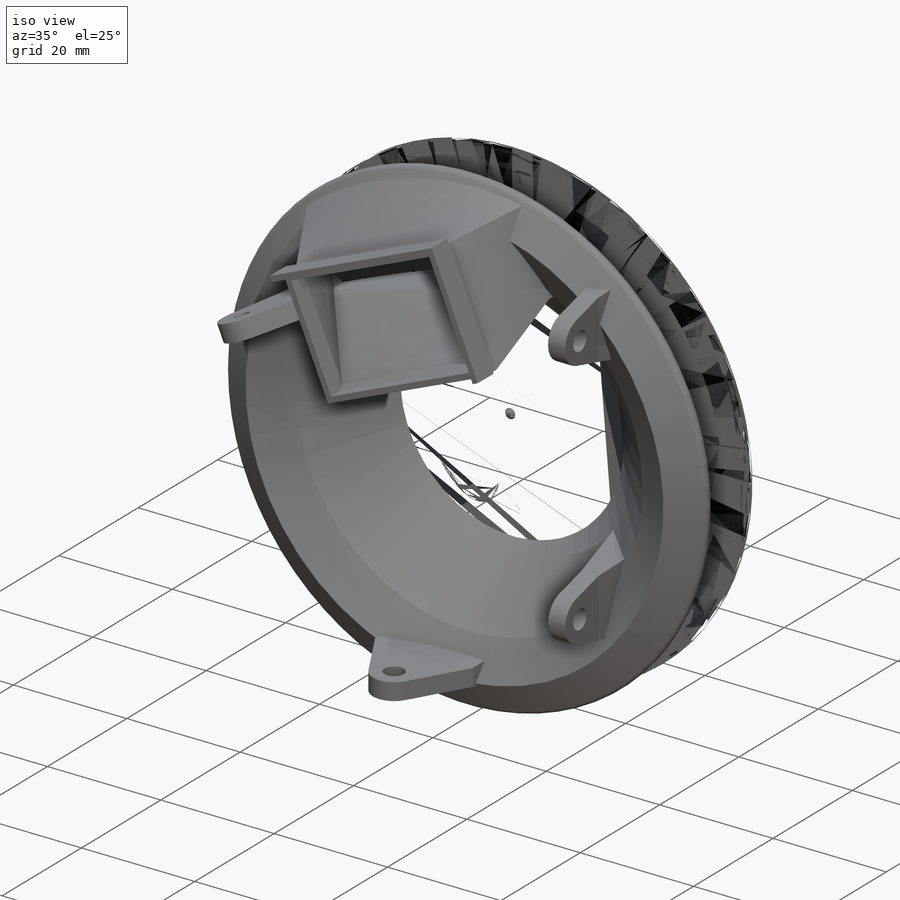
[diagram: iso view]
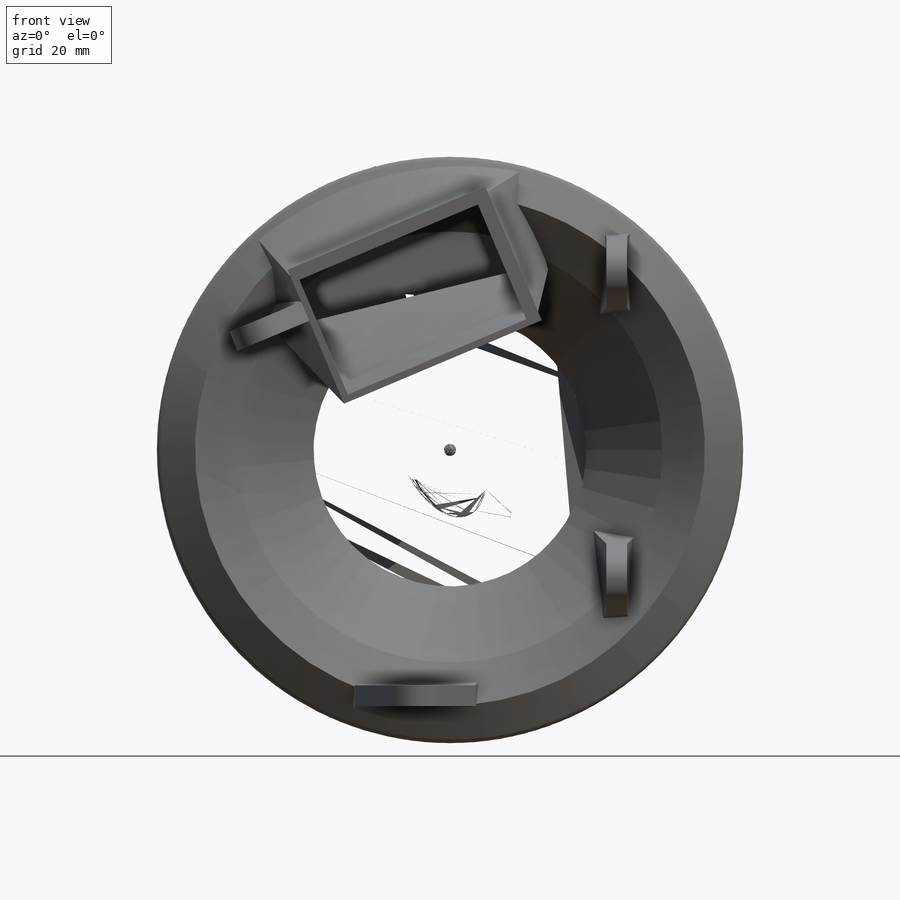
[diagram: front view]
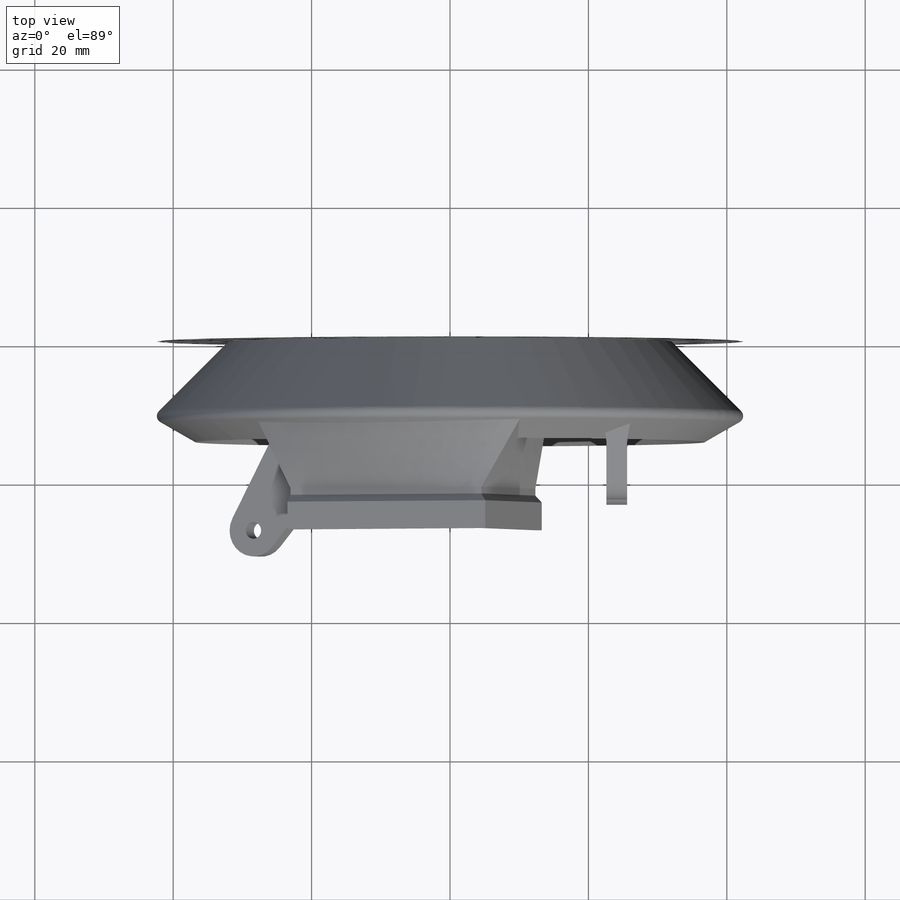
[diagram: top view]
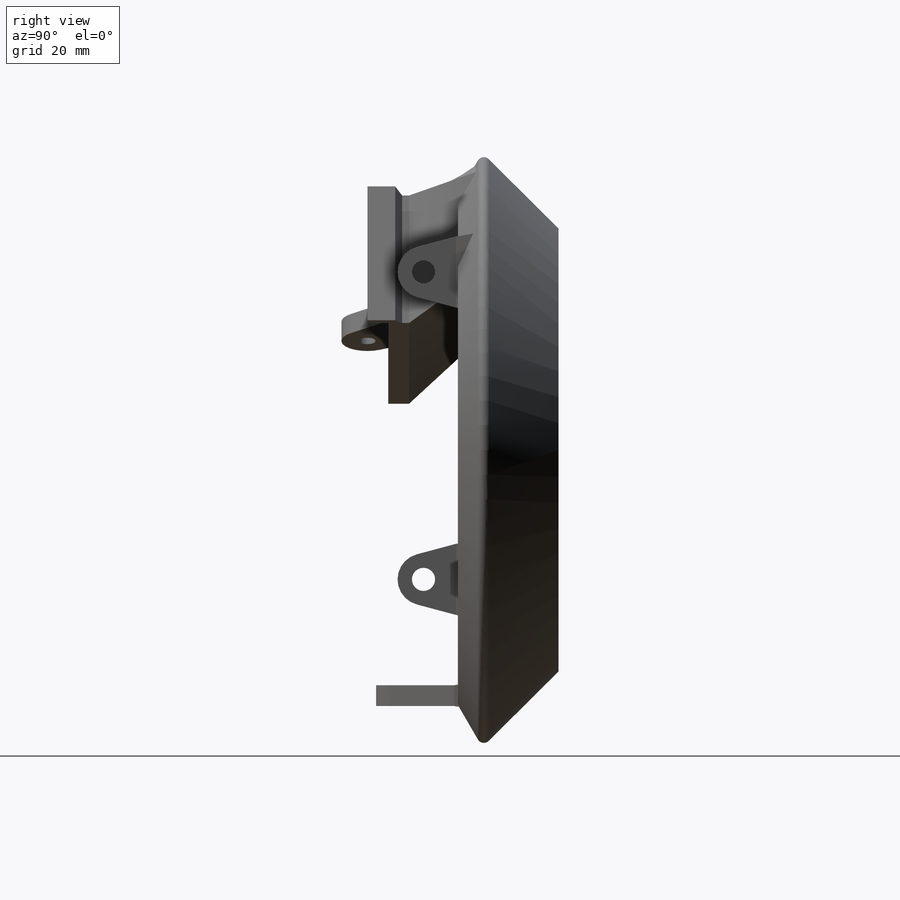
[diagram: right view]
SOLIDWORKS PART (.sldprt)
format: sldprt  version: not decoded by parser v0  size: 738,304 bytes
history: native  units: mm
features: sketch x18, extrude x11, material x1, revolve x1, plane x1, fillet x1, shell x1, cut_revolve x1, cut_extrude x1, chamfer x1 (+13 scaffold rows collapsed)
feature tree (50):
  scaffold x13  (default folders/planes/origin — collapsed)
  material  "ABS"
  sketch  "Sketch1"  dims[D1=~34.438351mm D2=~39.438351mm]
  sketch  "Sketch4"  dims[c1.D1=32.0mm c1.D2=~7.25884mm c2.D2=135.0deg c2.D3=~6.889573mm c3.D3=135.0deg c3.D4=11.0mm c3.D5=~6.870233mm c4.D5=30.0deg c4.D6=~6.331029mm c5.D6=30.0deg]
  revolve  "Revolve1"  Angle=360deg
  sketch  "Sketch5"  dims[D1=0.0mm]
  extrude  "Boss-Extrude10"  Depth=3mm
  plane  "Plane1"
  fillet  "Fillet4"  Radius=1mm
  sketch  "Sketch6"  dims[c1.D3=~74.764154mm c1.D1=20.0mm c1.D2=40.0mm c2.D3=2.5mm]
  sketch  "Sketch24"  dims[D1=0.0mm]
  sketch  "3DSketch1"
  sketch  "Sketch7"  dims[D1=0.0mm]
  extrude  "Boss-Extrude1"  [1 undecoded]
  shell  "Shell5"  Thickness=1mm
  sketch  "Sketch9"  dims[c1.D1=4.0mm c1.D2=6.0mm c1.D3=~2.744442mm c2.D1=4.0mm]
  cut_revolve  "Cut-Revolve1"  Angle=360deg
  sketch  "Sketch13"  dims[c1.D2=2.0mm c1.D3=1.0mm c1.D4=~22.633389mm c2.D3=47.0mm c2.D4=51.0mm c2.D1=3.5mm c3.D4=~21.858834mm c4.D4=15.0deg c4.D5=~0.337186mm c5.D5=~49.377177deg c6.D5=~22.331909mm c7.D5=35.0deg c7.D1=~30.696376mm c8.D1=13.0deg c9.D1=~15.74202mm c10.D1=25.0deg c10.D2=~31.06506mm c11.D2=25.0deg c11.D5=~6.280729mm c12.D5=40.0deg c12.D6=~27.343481mm c13.D6=40.0deg]
  extrude  "Boss-Extrude3"  [1 undecoded]
  sketch  "Sketch20"  dims[D2=27.0mm D1=1.5mm]
  cut_extrude  "Cut-Extrude5"  [1 undecoded]
  sketch  "Sketch21"  dims[D1=1.5mm D2=2.0mm]
  extrude  "Boss-Extrude6"  Depth=0.18mm
  sketch  "Sketch25"  dims[D1=1.0mm D2=0.0mm]
  extrude  "Boss-Extrude11"  Depth=3mm
  chamfer  "Chamfer2"  Distance=1mm Angle=45deg
  sketch  "Sketch26"  dims[c1.D2=3.35mm c1.D3=7.5mm c1.D1=~9.817218mm c2.D1=60.0deg c3.D1=~7.858238mm c4.D1=60.0deg c4.D4=7.5mm]
  extrude  "Boss-Extrude12"  Depth=3mm
  sketch  "Sketch27"  dims[D1=0.0mm]
  extrude  "Boss-Extrude13"  [1 undecoded]
  sketch  "Sketch28"  dims[c1.D1=3.35mm c1.D2=7.5mm c1.D3=3.35mm c1.D4=7.5mm c1.D6=2.4mm c1.D8=2.4mm c1.D5=~5.51481mm c2.D5=30.0deg c2.D6=4.7mm c2.D7=~5.670571mm c3.D7=30.0deg c3.D8=4.7mm]
  extrude  "Boss-Extrude14"  Depth=3mm
  sketch  "Sketch29"
  extrude  "Boss-Extrude15"  [1 undecoded]
  sketch  "Sketch30"  dims[c1.D1=2.4mm c1.D2=7.5mm c1.D3=~7.133002mm c2.D3=~5.554981deg c3.D3=~7.133002mm c4.D3=12.0deg c4.D4=0.5mm]
  extrude  "Boss-Extrude16"  Depth=3mm
  sketch  "Sketch31"  dims[D1=0.0mm]
  extrude  "Boss-Extrude17"  [1 undecoded]
decode coverage: 27 of 35 modeling features carry decoded parameters
note: ~ marks probable driven/reference dimensions
note: 6 parameter values undecoded
summary: no parameter record found for 6 features
note: suppression state not decoded; provenance and decode notes live in map.json
